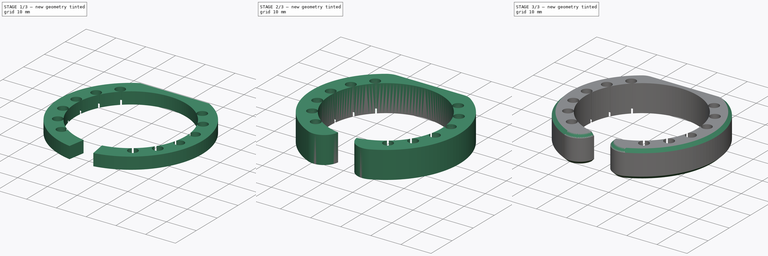
[diagram: build sequence overview — one tinted view per stage of 3, left to right]
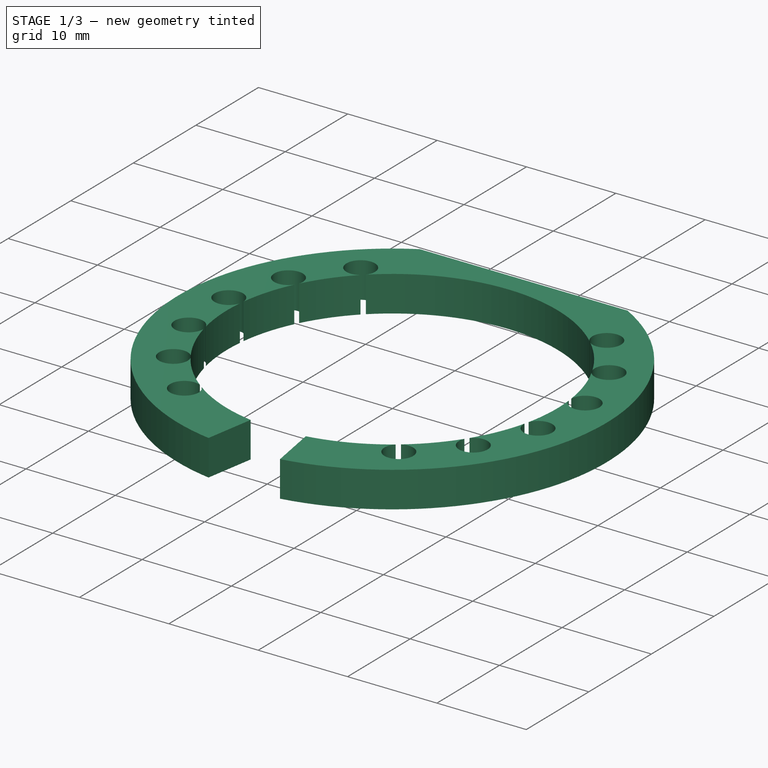
[diagram: stage 1 of 3 — iso view after this stage's code; geometry added in this stage tinted green]
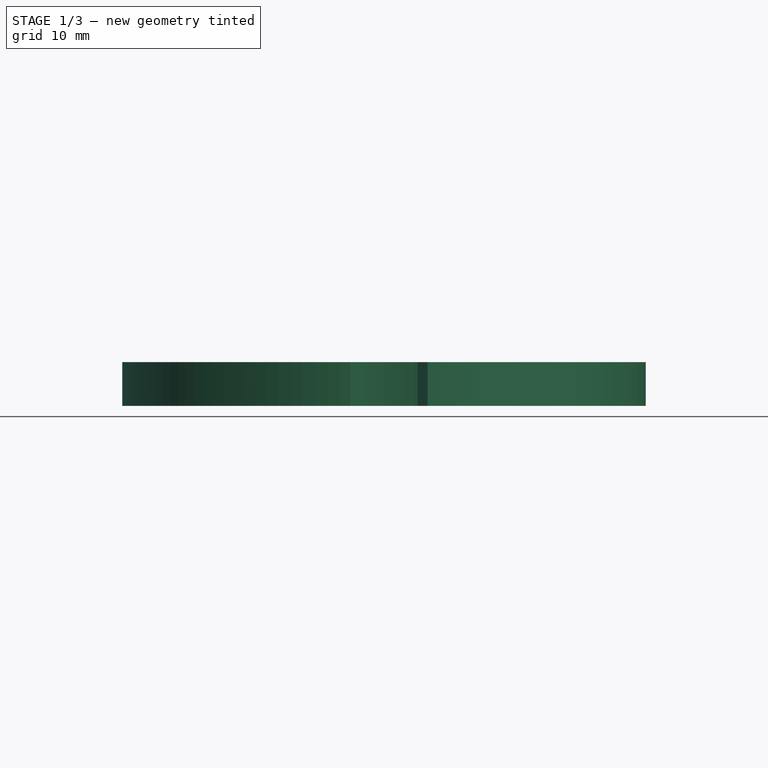
[diagram: stage 1 of 3 — front view after this stage's code; geometry added in this stage tinted green]
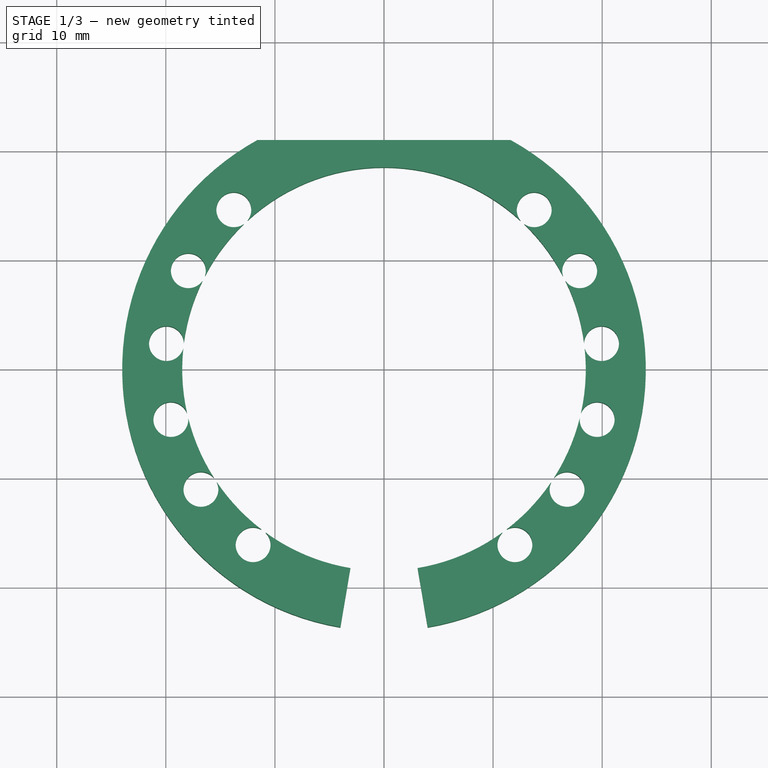
[diagram: stage 1 of 3 — top view after this stage's code; geometry added in this stage tinted green]
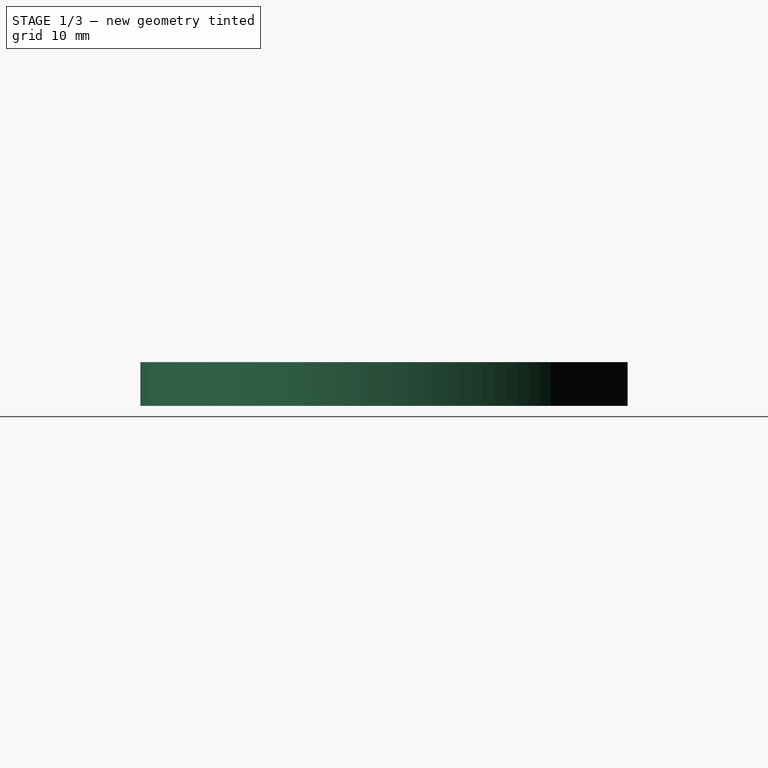
[diagram: stage 1 of 3 — right view after this stage's code; geometry added in this stage tinted green]
FCSTD DOCUMENT  (FreeCAD 0.17R13541 (Git))
Label: TopClip
License: All rights reserved
LicenseURL: http://en.wikipedia.org/wiki/All_rights_reserved
objects: Sketcher::SketchObject×4, PartDesign::Pocket×3, PartDesign::PolarPattern×2, PartDesign::Mirrored×2, PartDesign::MultiTransform×2, PartDesign::Fillet×2, PartDesign::Chamfer×2, Spreadsheet::Sheet×1, PartDesign::Pad×1, PartDesign::Body×1
note: 23 computed .brp shape members not serialized (recipe doc carries the construction recipe); baked Part::Feature solids carry a one-line shape summary decoded from their .brp

FEATURE [Sketcher::SketchObject] Sketch
  MapMode = 5
  Support = -> [XY_Plane]
  expr: Constraints[10] = P.Thick
  expr: Constraints[2] = P.InnerRadius / 6
  expr: Constraints[1] = P.InnerRadius
  sketch-geometry (4):
    g0: ArcOfCircle CenterX=0 CenterY=0 CenterZ=0 NormalX=0 NormalY=0 NormalZ=1 AngleXU=0 Radius=18.5 StartAngle=4.87984 EndAngle=7.85398
    g1: ArcOfCircle CenterX=0 CenterY=0 CenterZ=0 NormalX=0 NormalY=0 NormalZ=1 AngleXU=0 Radius=24 StartAngle=4.87984 EndAngle=7.85398
    g2: LineSegment StartX=0 StartY=18.5 StartZ=0 EndX=0 EndY=24 EndZ=0
    g3: LineSegment StartX=3.08333 StartY=-18.2412 StartZ=0 EndX=4 EndY=-23.6643 EndZ=0
  constraints (12):
    c: Coincident(g0,g-1)
    c: Radius(g0) = 18.5
    c: DistanceX(g-1,g0) = 3.08333
    c: Coincident(g1,g-1)
    c: Coincident(g2,g0)
    c: Coincident(g2,g1)
    c: Coincident(g3,g0)
    c: Coincident(g3,g1)
    c: Perpendicular(g0,g2)
    c: Perpendicular(g0,g3)
    c: Distance(g2) = 5.5
    c: PointOnObject(g1,g-2)
FEATURE [Spreadsheet::Sheet] Spreadsheet  label="P"
  cells = A1=Inner radius; B1(InnerRadius)==18.5mm; A2=Thick; B2(Thick)==5.5mm; A3=Wide; B3(Wide)==4mm; A4=Fiber radius; B4(FiberRadius)==1.6000000000000001mm
FEATURE [PartDesign::Pad] Pad
  Length = 4
  Length2 = 100
  Profile = -> Sketch
  Type = 0
  expr: Length = P.Wide
FEATURE [Sketcher::SketchObject] Sketch001
  MapMode = 5
  Support = -> [XY_Plane]
  expr: Constraints[6] = P.FiberRadius
  expr: Constraints[3] = P.InnerRadius
  expr: Constraints[2] = P.InnerRadius
  sketch-geometry (3):
    g0: LineSegment StartX=0 StartY=0 StartZ=0 EndX=10.8551 EndY=-14.9806 EndZ=0
    g1: LineSegment StartX=11.2559 StartY=-14.6817 StartZ=0 EndX=0 EndY=0 EndZ=0
    g2: ArcOfCircle CenterX=12 CenterY=-16.0982 CenterZ=0 NormalX=0 NormalY=0 NormalZ=1 AngleXU=0 Radius=1.6 StartAngle=2.36826 EndAngle=8.33765
  constraints (9):
    c: Coincident(g1,g-1)
    c: Coincident(g0,g-1)
    c: Distance(g0) = 18.5
    c: Distance(g1) = 18.5
    c: Coincident(g2,g1)
    c: Coincident(g2,g0)
    c: Radius(g2) = 1.6
    c: Distance(g1,g0) = 0.5
    c: DistanceX(g-1,g2) = 12
FEATURE [PartDesign::Pocket] Pocket
  BaseFeature = -> Pad
  Length = 5
  Length2 = 100
  Profile = -> Sketch001
  Reversed = true
  Type = 1
FEATURE [PartDesign::PolarPattern] PolarPattern
  Angle = 100
  Axis = -> Sketch001 [N_Axis]
  BaseFeature = -> Pocket
  Occurrences = 6
  Originals = -> [Pocket]
FEATURE [Sketcher::SketchObject] Sketch002
  MapMode = 5
  Support = -> [XY_Plane]
  expr: Constraints[9] = P.InnerRadius + 2.5mm
  sketch-geometry (4):
    g0: LineSegment StartX=-30 StartY=21 StartZ=0 EndX=30 EndY=21 EndZ=0
    g1: LineSegment StartX=30 StartY=21 StartZ=0 EndX=30 EndY=31 EndZ=0
    g2: LineSegment StartX=30 StartY=31 StartZ=0 EndX=-30 EndY=31 EndZ=0
    g3: LineSegment StartX=-30 StartY=31 StartZ=0 EndX=-30 EndY=21 EndZ=0
  constraints (12):
    c: Coincident(g0,g1)
    c: Coincident(g1,g2)
    c: Coincident(g2,g3)
    c: Coincident(g3,g0)
    c: Horizontal(g0)
    c: Horizontal(g2)
    c: Vertical(g1)
    c: Vertical(g3)
    c: DistanceX(g0,g-1) = 30
    c: DistanceY(g-1,g0) = 21
    c: DistanceX(g0,g0) = 60
    c: DistanceY(g1,g1) = 10
FEATURE [PartDesign::Mirrored] Mirrored
  MirrorPlane = -> Sketch [V_Axis]
FEATURE [PartDesign::MultiTransform] MultiTransform
  BaseFeature = -> PolarPattern
  Originals = -> [Pad]
  Transformations = -> [Mirrored]
FEATURE [PartDesign::Mirrored] Mirrored001
  MirrorPlane = -> Sketch002 [V_Axis]
FEATURE [Sketcher::SketchObject] Sketch003
  MapMode = 5
  Support = -> [XY_Plane]
  expr: Constraints[6] = P.FiberRadius
  expr: Constraints[3] = P.InnerRadius
  expr: Constraints[2] = P.InnerRadius
  sketch-geometry (3):
    g0: LineSegment StartX=0 StartY=0 StartZ=0 EndX=-11.2559 EndY=-14.6817 EndZ=0
    g1: LineSegment StartX=-10.8551 StartY=-14.9806 StartZ=0 EndX=0 EndY=0 EndZ=0
    g2: ArcOfCircle CenterX=-12 CenterY=-16.0982 CenterZ=0 NormalX=0 NormalY=0 NormalZ=1 AngleXU=0 Radius=1.6 StartAngle=1.08712 EndAngle=7.05652
  constraints (9):
    c: Coincident(g1,g-1)
    c: Coincident(g0,g-1)
    c: Distance(g0) = 18.5
    c: Distance(g1) = 18.5
    c: Coincident(g2,g1)
    c: Coincident(g2,g0)
    c: Radius(g2) = 1.6
    c: Distance(g1,g0) = 0.5
    c: DistanceX(g-1,g2) = -12
FEATURE [PartDesign::Body] Body
  Group = -> [Sketch,Pad,Sketch001,Pocket,PolarPattern,Sketch002,MultiTransform,Mirrored,MultiTransform001,Pocket001,Mirrored001,Sketch003,Pocket002,PolarPattern001,Fillet,Fillet001,Chamfer,Chamfer001]
  Origin = -> Origin
  Tip = -> Chamfer001
FEATURE [PartDesign::Pocket] Pocket001
  BaseFeature = -> MultiTransform001
  Length = 5
  Length2 = 100
  Profile = -> Sketch002
  Reversed = true
  Type = 1
FEATURE [PartDesign::MultiTransform] MultiTransform001
  BaseFeature = -> MultiTransform
  Originals = -> [Pocket001]
  Transformations = -> [Mirrored001]
FEATURE [PartDesign::Pocket] Pocket002
  BaseFeature = -> Pocket001
  Length = 5
  Length2 = 100
  Profile = -> Sketch003
  Reversed = true
  Type = 1
FEATURE [PartDesign::PolarPattern] PolarPattern001
  Angle = 100
  Axis = -> Sketch003 [N_Axis]
  BaseFeature = -> Pocket002
  Occurrences = 6
  Originals = -> [Pocket002]
  Reversed = true
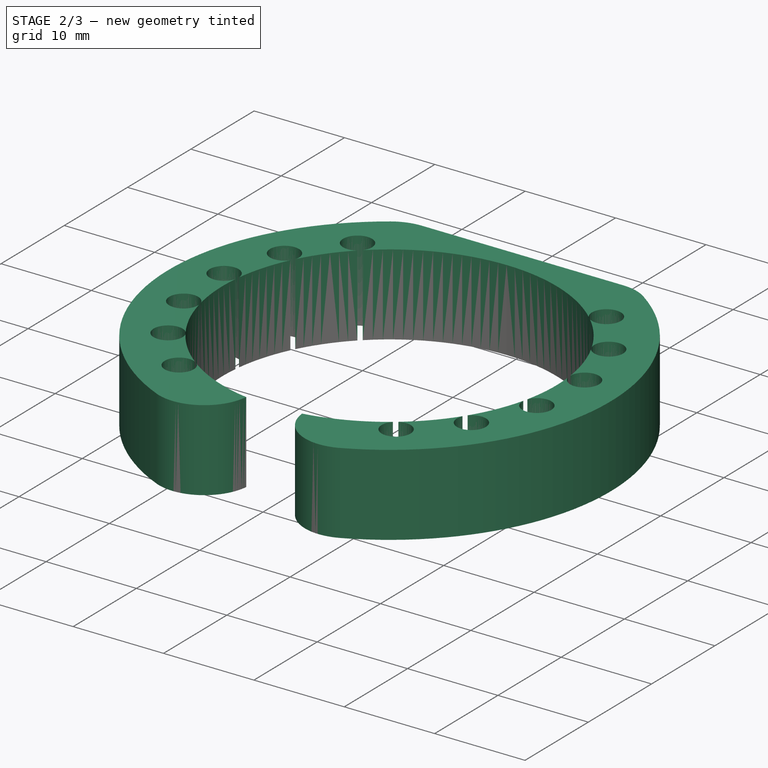
[diagram: stage 2 of 3 — iso view after this stage's code; geometry added in this stage tinted green]
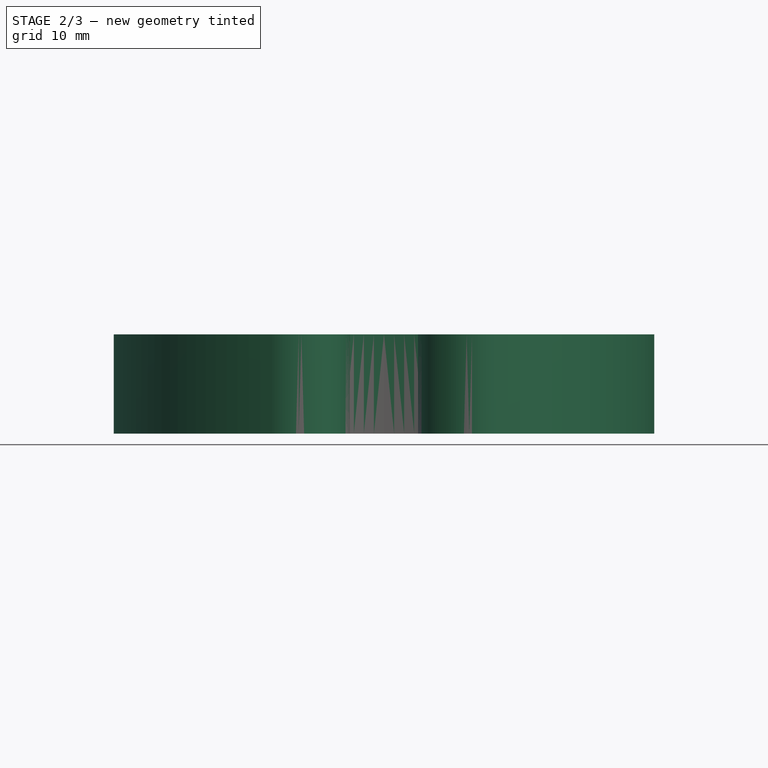
[diagram: stage 2 of 3 — front view after this stage's code; geometry added in this stage tinted green]
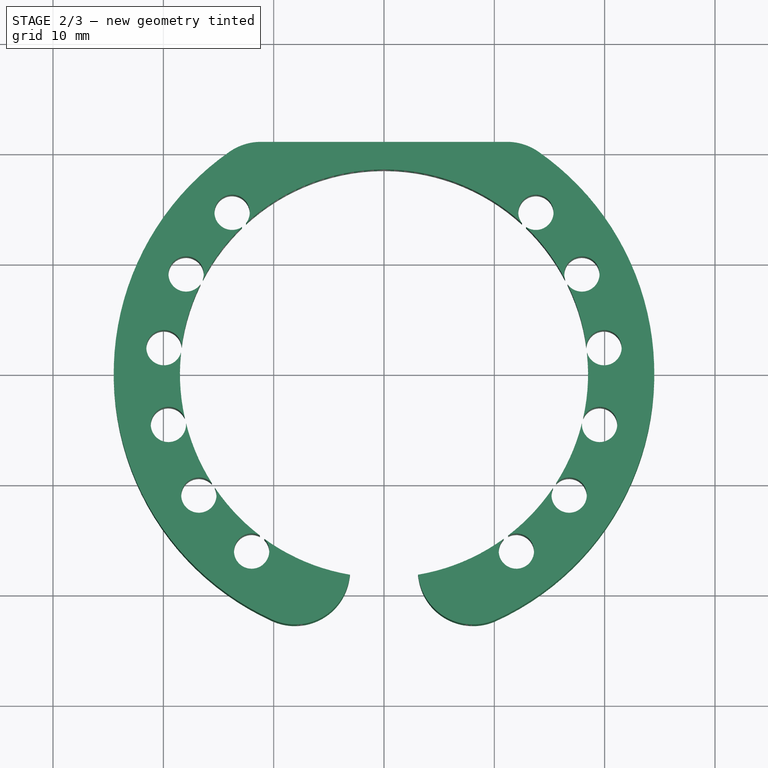
[diagram: stage 2 of 3 — top view after this stage's code; geometry added in this stage tinted green]
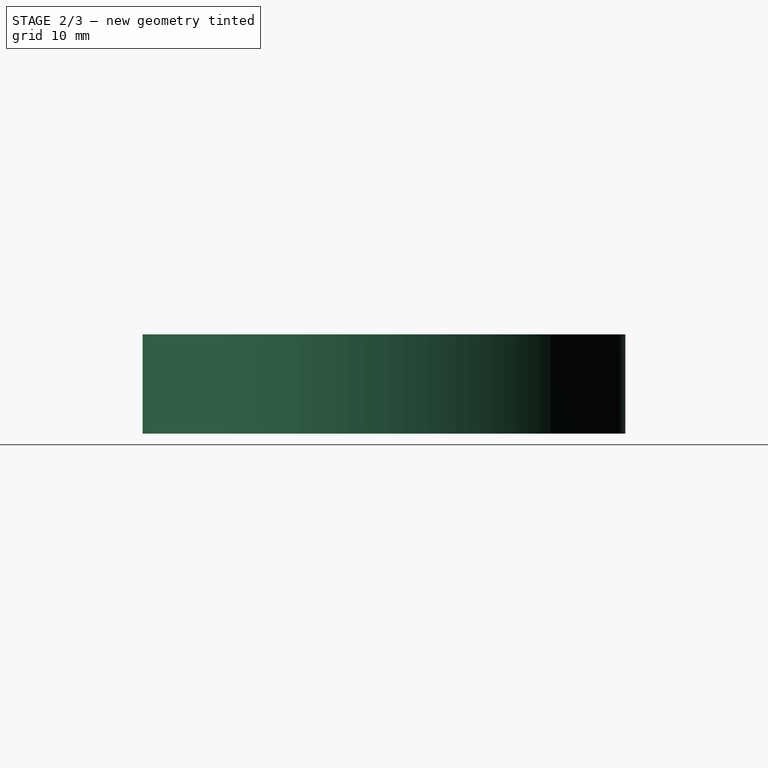
[diagram: stage 2 of 3 — right view after this stage's code; geometry added in this stage tinted green]
FEATURE [PartDesign::Fillet] Fillet
  Base = -> PolarPattern001 [Edge84,Edge38]
  BaseFeature = -> PolarPattern001
  Radius = 5
FEATURE [PartDesign::Fillet] Fillet001
  Base = -> Fillet [Edge26,Edge31]
  BaseFeature = -> Fillet
  Radius = 5
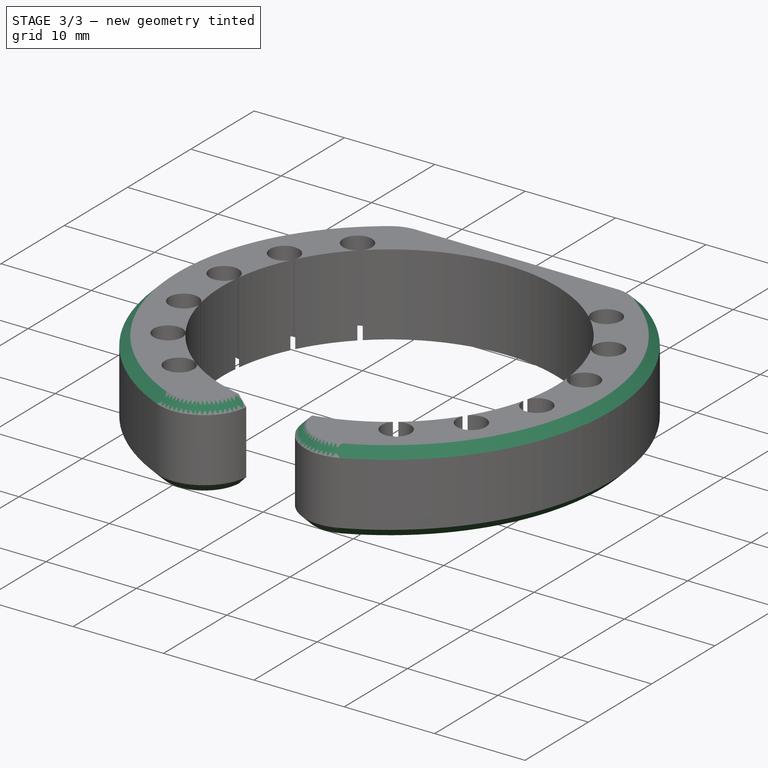
[diagram: stage 3 of 3 — iso view after this stage's code; geometry added in this stage tinted green]
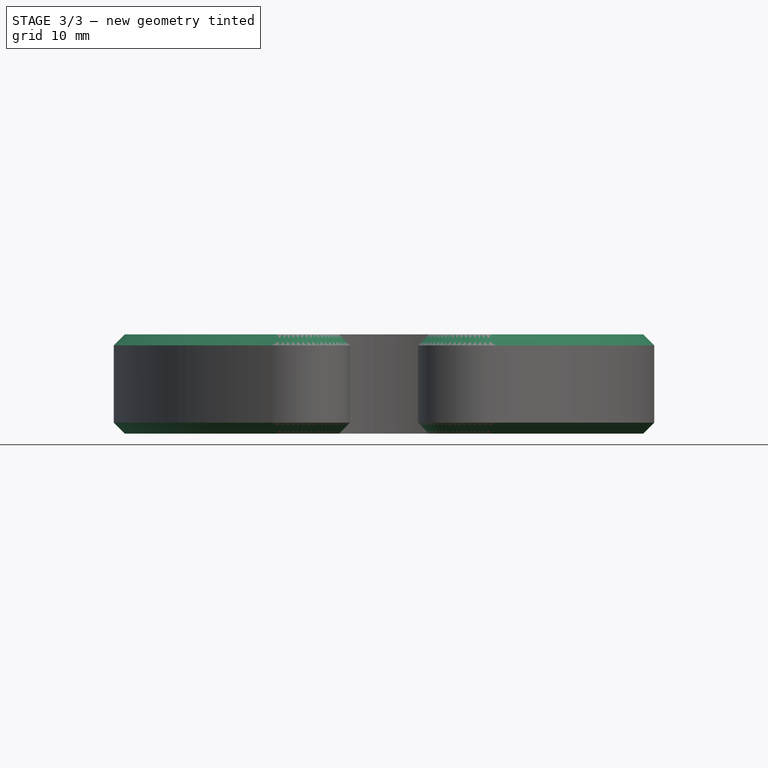
[diagram: stage 3 of 3 — front view after this stage's code; geometry added in this stage tinted green]
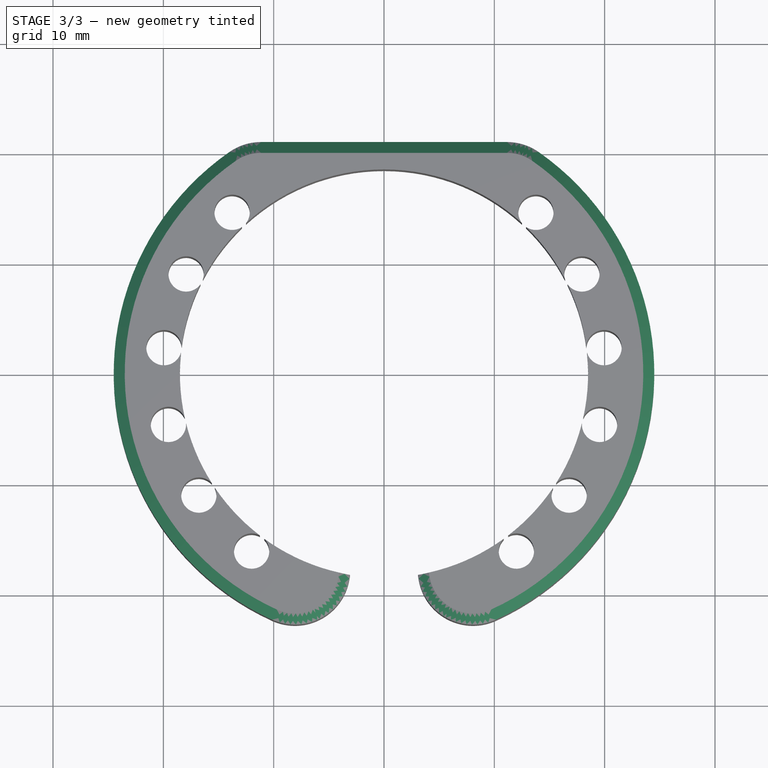
[diagram: stage 3 of 3 — top view after this stage's code; geometry added in this stage tinted green]
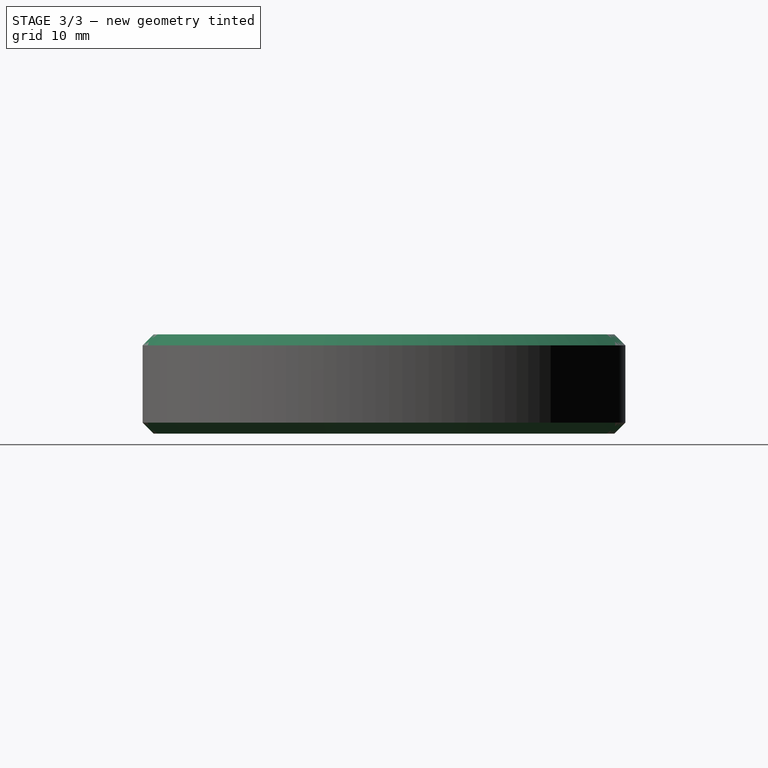
[diagram: stage 3 of 3 — right view after this stage's code; geometry added in this stage tinted green]
FEATURE [PartDesign::Chamfer] Chamfer
  Base = -> Fillet001 [Edge22,Edge26,Edge80,Edge79,Edge23,Edge28,Edge30,Edge77]
  BaseFeature = -> Fillet001
  Size = 1
FEATURE [PartDesign::Chamfer] Chamfer001
  Base = -> Chamfer [Edge3,Edge6,Edge12,Edge34,Edge57,Edge56,Edge58,Edge11]
  BaseFeature = -> Chamfer
  Size = 1
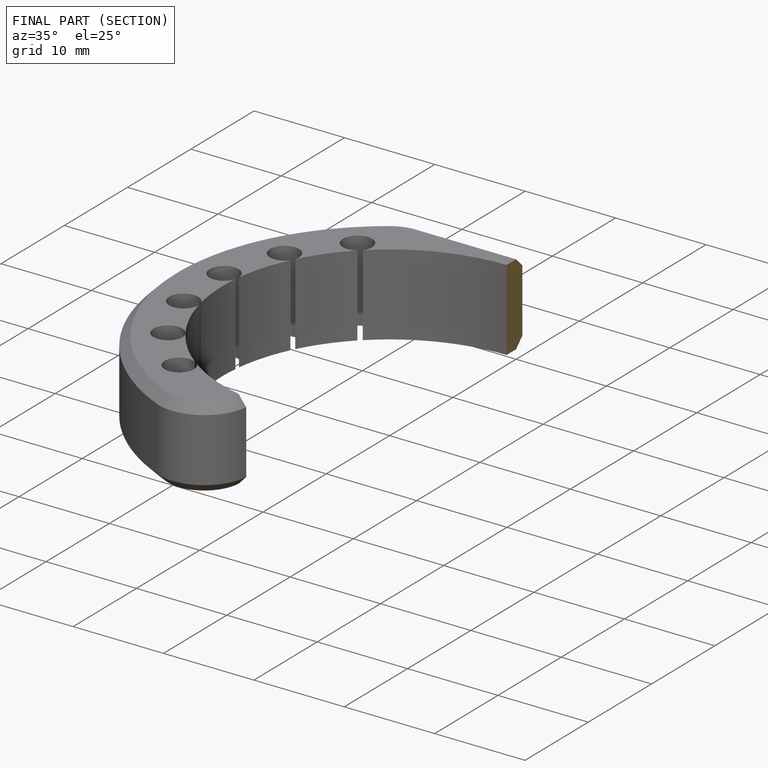
[diagram: finished part — half-section view (interior)]
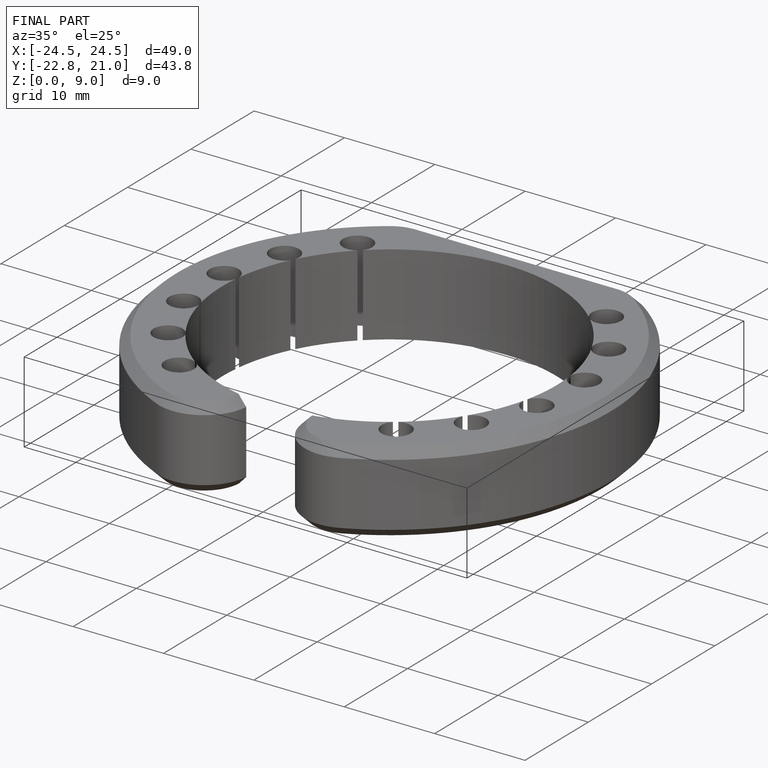
[diagram: finished part — iso view with bounding-box wireframe]
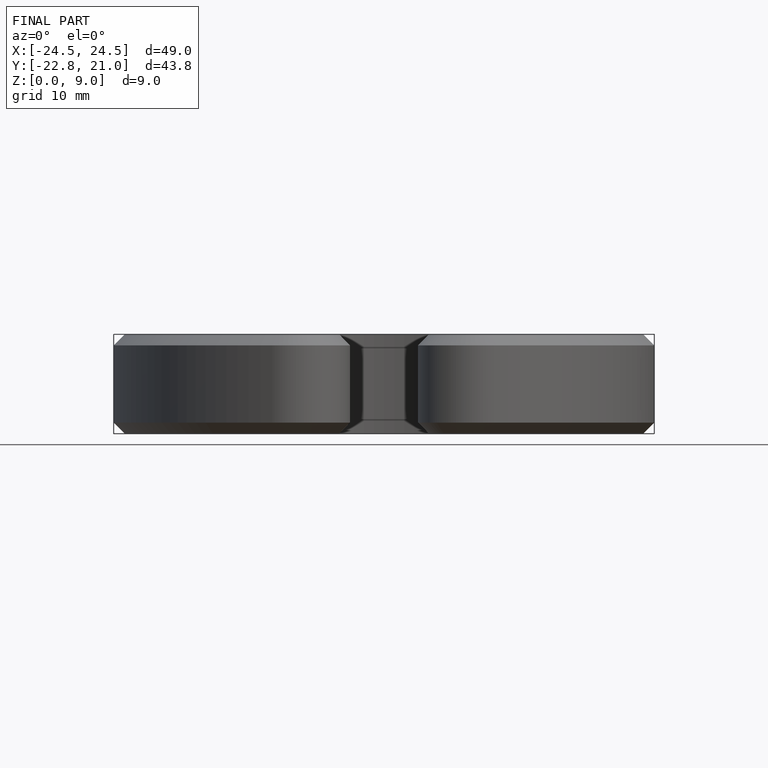
[diagram: finished part — front view with bounding-box wireframe]
